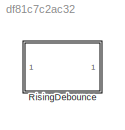
MODEL slx_df81c7c2ac32
KIND library
CONFIG AbsTol = auto
CONFIG EnableMultiTasking = off
CONFIG FixedStep = auto
CONFIG MaxStep = auto
CONFIG MinStep = auto
CONFIG RelTol = 1e-3
CONFIG SampleTimeConstraint = Unconstrained
CONFIG Solver = VariableStepAuto
CONFIG SolverName = VariableStepAuto
CONFIG StartTime = 0.0
CONFIG StopTime = 10.0
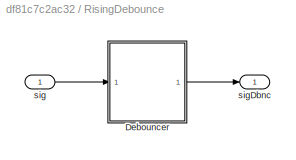
BLOCK [SubSystem] RisingDebounce
  Ports = [1, 1]
  RequestExecContextInheritance = off
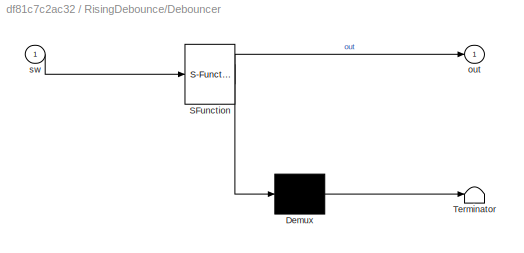
BLOCK [SubSystem] RisingDebounce/Debouncer
  ErrorFcn = Stateflow.Translate.translate
  PermitHierarchicalResolution = ExplicitOnly
  Ports = [1, 1]
  RequestExecContextInheritance = off
  SFBlockType = Chart
  TreatAsAtomicUnit = on
BLOCK [Demux] RisingDebounce/Debouncer/ Demux 
  Outputs = 1
  Ports = [1, 1]
BLOCK [S-Function] RisingDebounce/Debouncer/ SFunction 
  EnableBusSupport = on
  FunctionName = sf_sfun
  Parameters = threshold,timeDelay_s
  PortCounts = [1 2]
  Ports = [1, 2]
  SFcnIsStateOwnerBlock = off
  SFunctionDeploymentMode = off
  Tag = Stateflow S-Function risingDebounce_ul 17
BLOCK [Terminator] RisingDebounce/Debouncer/ Terminator 
BLOCK [Outport] RisingDebounce/Debouncer/out
  IconDisplay = Port number
BLOCK [Inport] RisingDebounce/Debouncer/sw
  IconDisplay = Port number
BLOCK [Inport] RisingDebounce/sig
  IconDisplay = Port number
BLOCK [Outport] RisingDebounce/sigDbnc
  IconDisplay = Port number
LINE RisingDebounce/Debouncer:1 -> RisingDebounce/sigDbnc:1
LINE RisingDebounce/sig:1 -> RisingDebounce/Debouncer:1
CHART RisingDebounce/Debouncer states=2 transitions=3
  STATE_LABEL 'Off\nentry: out = false;'
  STATE_LABEL 'On\nentry: out = true;\n'
